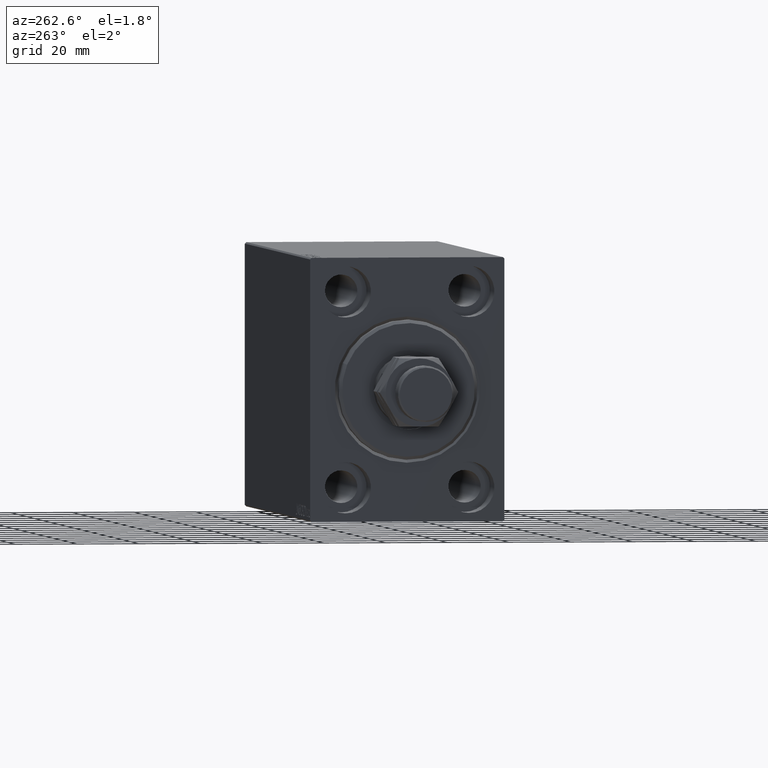
[diagram: clean part render]
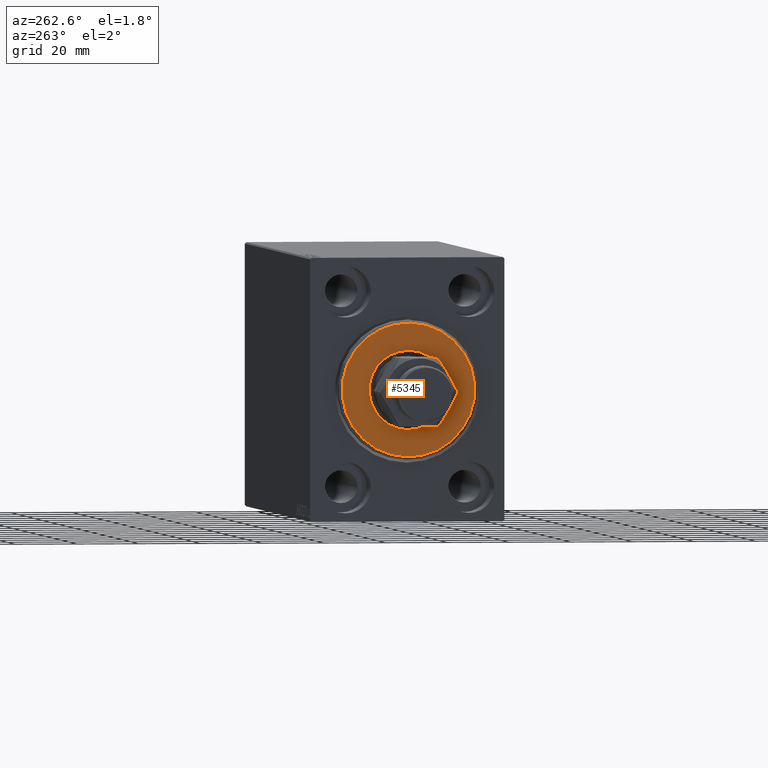
[diagram: same view with one face highlighted and labeled with its STEP entity id]
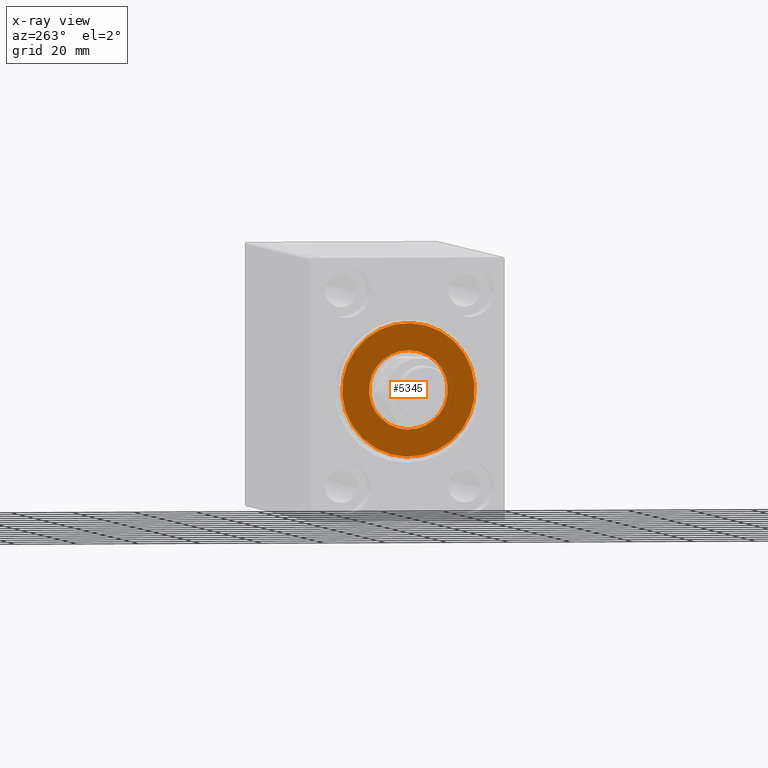
[diagram: x-ray of the same camera — body ghosted, the highlighted face saturated]
A machine part, auxiliary view. The second image highlights one B-rep face of the part: STEP entity #5345.
The next image is the same camera in x-ray: the body ghosted, the highlighted face saturated — about 4% of this face is hidden behind the body in this view.
In plain terms, the highlighted planar face has unit normal (-1, 0, 0).
Its self-contained STEP definition (entity closure, byte-faithful):
#387 = CARTESIAN_POINT ( 'NONE',  ( 3.000000000000000000, 0.000000000000000000, 0.000000000000000000 ) ) ;
#970 = EDGE_CURVE ( 'NONE', #26569, #21067, #31178, .T. ) ;
#1122 = ORIENTED_EDGE ( 'NONE', *, *, #43992, .T. ) ;
#3929 = CIRCLE ( 'NONE', #6867, 12.75000000000000000 ) ;
#3945 = CARTESIAN_POINT ( 'NONE',  ( 3.000000000000000000, 0.000000000000000000, 21.50000000000000355 ) ) ;
#4217 = EDGE_CURVE ( 'NONE', #21067, #26569, #26174, .T. ) ;
#5345 = ADVANCED_FACE ( 'NONE', ( #27689, #38430 ), #7463, .T. ) ;
#6867 = AXIS2_PLACEMENT_3D ( 'NONE', #24169, #17720, #31719 ) ;
#7463 = PLANE ( 'NONE',  #21018 ) ;
#7820 = DIRECTION ( 'NONE',  ( 0.000000000000000000, 0.000000000000000000, -1.000000000000000000 ) ) ;
#8369 = VERTEX_POINT ( 'NONE', #19273 ) ;
#8899 = VERTEX_POINT ( 'NONE', #38502 ) ;
#10279 = DIRECTION ( 'NONE',  ( 1.000000000000000000, -0.000000000000000000, 0.000000000000000000 ) ) ;
#10577 = CARTESIAN_POINT ( 'NONE',  ( 3.000000000000000000, 0.000000000000000000, 0.000000000000000000 ) ) ;
#12244 = ORIENTED_EDGE ( 'NONE', *, *, #4217, .T. ) ;
#14123 = DIRECTION ( 'NONE',  ( 1.000000000000000000, -0.000000000000000000, 0.000000000000000000 ) ) ;
#14393 = DIRECTION ( 'NONE',  ( 0.000000000000000000, 0.000000000000000000, -1.000000000000000000 ) ) ;
#16464 = ORIENTED_EDGE ( 'NONE', *, *, #970, .T. ) ;
#17338 = DIRECTION ( 'NONE',  ( 0.000000000000000000, 0.000000000000000000, -1.000000000000000000 ) ) ;
#17720 = DIRECTION ( 'NONE',  ( -1.000000000000000000, 0.000000000000000000, -0.000000000000000000 ) ) ;
#17991 = AXIS2_PLACEMENT_3D ( 'NONE', #10577, #28487, #7820 ) ;
#19273 = CARTESIAN_POINT ( 'NONE',  ( 3.000000000000000000, 1.561424668912874914E-15, -12.75000000000000000 ) ) ;
#20821 = EDGE_CURVE ( 'NONE', #8899, #8369, #42966, .T. ) ;
#21018 = AXIS2_PLACEMENT_3D ( 'NONE', #24469, #14123, #17338 ) ;
#21067 = VERTEX_POINT ( 'NONE', #24819 ) ;
#22500 = AXIS2_PLACEMENT_3D ( 'NONE', #387, #10279, #14393 ) ;
#22585 = ORIENTED_EDGE ( 'NONE', *, *, #20821, .T. ) ;
#24169 = CARTESIAN_POINT ( 'NONE',  ( 3.000000000000000000, 0.000000000000000000, 0.000000000000000000 ) ) ;
#24469 = CARTESIAN_POINT ( 'NONE',  ( 3.000000000000000000, 0.000000000000000000, 0.000000000000000000 ) ) ;
#24819 = CARTESIAN_POINT ( 'NONE',  ( 3.000000000000000000, 2.694222958124177598E-15, -21.50000000000000355 ) ) ;
#25811 = EDGE_LOOP ( 'NONE', ( #22585, #1122 ) ) ;
#26174 = CIRCLE ( 'NONE', #22500, 21.50000000000000355 ) ;
#26569 = VERTEX_POINT ( 'NONE', #3945 ) ;
#26690 = DIRECTION ( 'NONE',  ( -1.000000000000000000, 0.000000000000000000, -0.000000000000000000 ) ) ;
#27689 = FACE_OUTER_BOUND ( 'NONE', #30385, .T. ) ;
#28487 = DIRECTION ( 'NONE',  ( 1.000000000000000000, -0.000000000000000000, 0.000000000000000000 ) ) ;
#29684 = CARTESIAN_POINT ( 'NONE',  ( 3.000000000000000000, 0.000000000000000000, 0.000000000000000000 ) ) ;
#30385 = EDGE_LOOP ( 'NONE', ( #16464, #12244 ) ) ;
#31178 = CIRCLE ( 'NONE', #17991, 21.50000000000000355 ) ;
#31719 = DIRECTION ( 'NONE',  ( 0.000000000000000000, 0.000000000000000000, -1.000000000000000000 ) ) ;
#38430 = FACE_BOUND ( 'NONE', #25811, .T. ) ;
#38502 = CARTESIAN_POINT ( 'NONE',  ( 3.000000000000000000, 0.000000000000000000, 12.75000000000000000 ) ) ;
#42236 = AXIS2_PLACEMENT_3D ( 'NONE', #29684, #26690, #43213 ) ;
#42966 = CIRCLE ( 'NONE', #42236, 12.75000000000000000 ) ;
#43213 = DIRECTION ( 'NONE',  ( 0.000000000000000000, 0.000000000000000000, -1.000000000000000000 ) ) ;
#43992 = EDGE_CURVE ( 'NONE', #8369, #8899, #3929, .T. ) ;